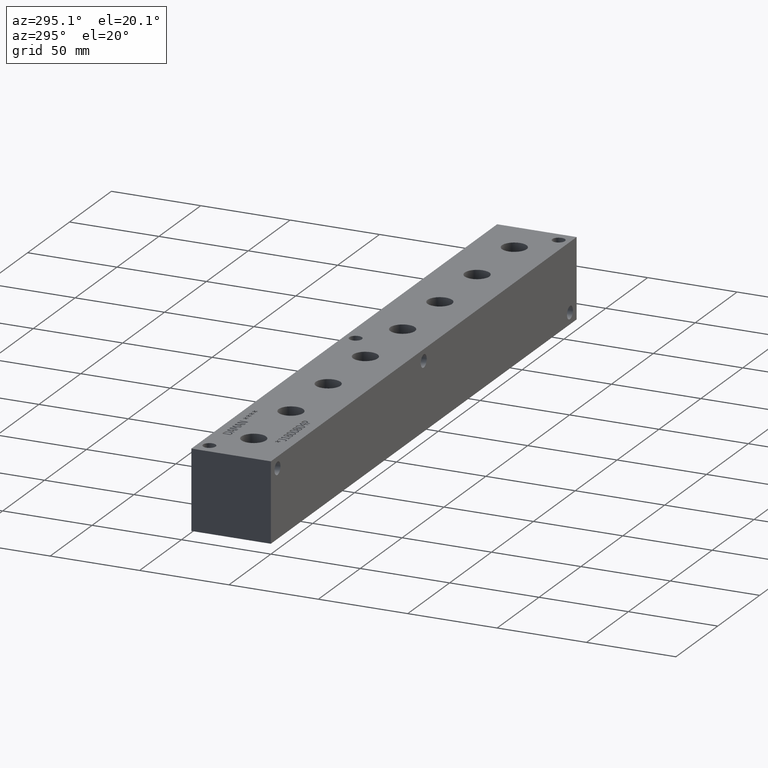
[diagram: clean part render]
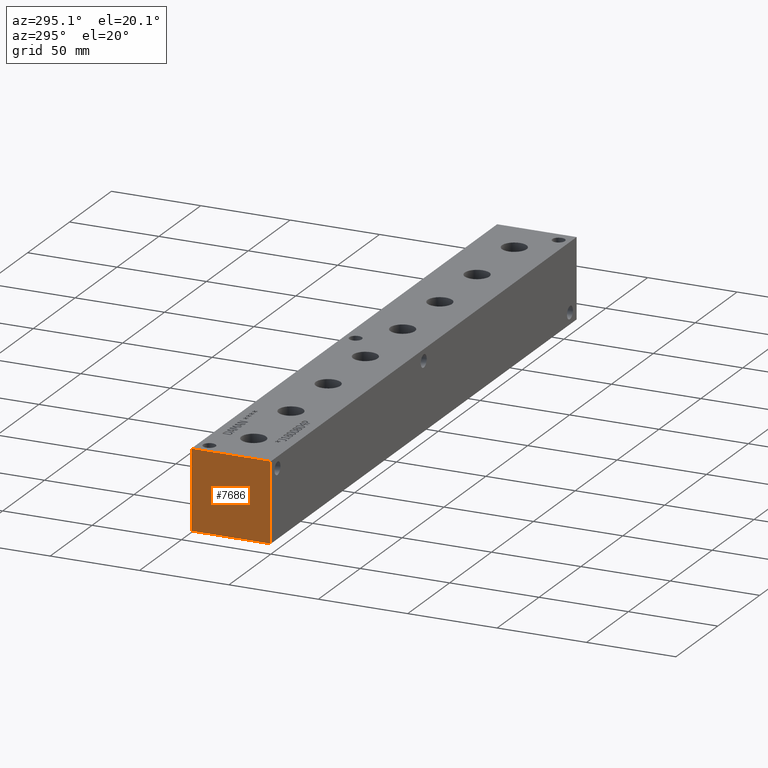
[diagram: same view with one face highlighted and labeled with its STEP entity id]
A machine part, auxiliary view. The second image highlights one B-rep face of the part: STEP entity #7686.
In plain terms, the highlighted planar face has unit normal (-1, 0, 0).
Its self-contained STEP definition (entity closure, byte-faithful):
#522=PLANE('',#8139);
#915=FACE_OUTER_BOUND('',#1366,.T.);
#1366=EDGE_LOOP('',(#6852,#6853,#6854,#6855));
#1663=LINE('',#11802,#2383);
#2101=LINE('',#13146,#2821);
#2102=LINE('',#13147,#2822);
#2103=LINE('',#13148,#2823);
#2383=VECTOR('',#8565,10.);
#2821=VECTOR('',#9727,10.);
#2822=VECTOR('',#9728,10.);
#2823=VECTOR('',#9729,10.);
#3319=VERTEX_POINT('',#11795);
#3322=VERTEX_POINT('',#11800);
#3737=VERTEX_POINT('',#13144);
#3738=VERTEX_POINT('',#13145);
#4191=EDGE_CURVE('',#3322,#3319,#1663,.T.);
#4787=EDGE_CURVE('',#3737,#3738,#2101,.T.);
#4788=EDGE_CURVE('',#3738,#3319,#2102,.T.);
#4789=EDGE_CURVE('',#3737,#3322,#2103,.T.);
#6852=ORIENTED_EDGE('',*,*,#4787,.T.);
#6853=ORIENTED_EDGE('',*,*,#4788,.T.);
#6854=ORIENTED_EDGE('',*,*,#4191,.F.);
#6855=ORIENTED_EDGE('',*,*,#4789,.F.);
#7686=ADVANCED_FACE('',(#915),#522,.T.);
#8139=AXIS2_PLACEMENT_3D('',#13143,#9725,#9726);
#8565=DIRECTION('',(0.,-1.,0.));
#9725=DIRECTION('center_axis',(-1.,0.,0.));
#9726=DIRECTION('ref_axis',(0.,-1.,0.));
#9727=DIRECTION('',(0.,-1.,0.));
#9728=DIRECTION('',(0.,0.,1.));
#9729=DIRECTION('',(0.,0.,1.));
#11795=CARTESIAN_POINT('',(0.,0.,44.45));
#11800=CARTESIAN_POINT('',(0.,44.45,44.45));
#11802=CARTESIAN_POINT('',(0.,44.45,44.45));
#13143=CARTESIAN_POINT('Origin',(0.,44.45,0.));
#13144=CARTESIAN_POINT('',(0.,44.45,0.));
#13145=CARTESIAN_POINT('',(0.,0.,0.));
#13146=CARTESIAN_POINT('',(0.,44.45,0.));
#13147=CARTESIAN_POINT('',(0.,0.,0.));
#13148=CARTESIAN_POINT('',(0.,44.45,0.));